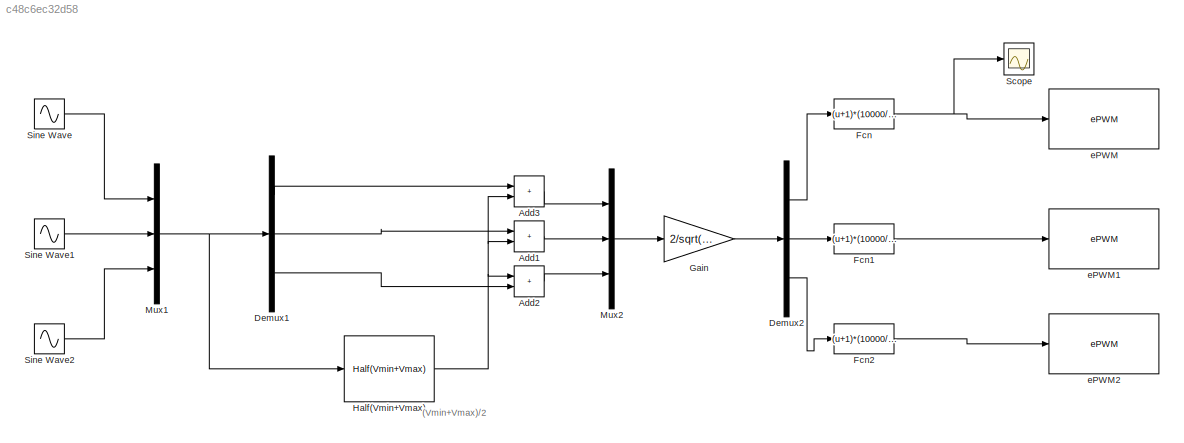
MODEL slx_c48c6ec32d58
KIND model
CONFIG AbsTol = auto
CONFIG EnableMultiTasking = on
CONFIG FixedStep = 1e-5
CONFIG MaxStep = auto
CONFIG MinStep = auto
CONFIG RelTol = 1e-3
CONFIG SampleTimeConstraint = Unconstrained
CONFIG SolverName = FixedStepAuto
CONFIG StartTime = 0.0
CONFIG StopTime = Inf
BLOCK [Sum] Add1
  AccumDataTypeStr = Inherit: Same as first input
  IconShape = rectangular
  OutDataTypeStr = Inherit: Same as first input
  RndMeth = Simplest
BLOCK [Sum] Add2
  AccumDataTypeStr = Inherit: Same as first input
  IconShape = rectangular
  OutDataTypeStr = Inherit: Same as first input
  RndMeth = Simplest
BLOCK [Sum] Add3
  AccumDataTypeStr = Inherit: Same as first input
  IconShape = rectangular
  OutDataTypeStr = Inherit: Same as first input
  RndMeth = Simplest
BLOCK [Demux] Demux1
  Outputs = 3
BLOCK [Demux] Demux2
  Outputs = 3
BLOCK [Fcn] Fcn
  Expr = (u+1)*(10000/2)
BLOCK [Fcn] Fcn1
  Expr = (u+1)*(10000/2)
BLOCK [Fcn] Fcn2
  Expr = (u+1)*(10000/2)
BLOCK [Gain] Gain
  Gain = 2/sqrt(3)
  OutDataTypeStr = Inherit: Same as input
  ParamDataTypeStr = Inherit: Same as input
  RndMeth = Simplest
BLOCK [Reference] Half(Vmin+Vmax)  REF=mcbcontrolslib/PWM Reference Generator/Modulation method/SVPWM/Half(Vmin+Vmax)
  SourceBlock = mcbcontrolslib/PWM Reference Generator/Modulation method/SVPWM/Half(Vmin+Vmax)
  SourceType = SubSystem
BLOCK [Mux] Mux1
  DisplayOption = bar
  Inputs = 3
BLOCK [Mux] Mux2
  DisplayOption = bar
  Inputs = 3
BLOCK [Scope] Scope
  Floating = off
  NumInputPorts = 1
  ScopeSpecificationString = Simulink.scopes.TimeScopeBlockCfg('CurrentConfiguration', extmgr.ConfigurationSet(extmgr.Configuration('Core','General UI',true),extmgr.Configuration('Core','Source UI',true),extmgr.Configuration('Sources','WiredSimulink',true),extmgr.Configuration('Visuals','Time Domain',true,'SerializedDisplays',{struct('MinYLimReal','443.52078','MaxYLimReal','9777.54789','YLabelReal','','MinYLimMag','443.52078'...<+1474ch>
BLOCK [Sin] Sine Wave
  Amplitude = 0.9
  Frequency = 100*pi
  SampleTime = 1/10000
BLOCK [Sin] Sine Wave1
  Amplitude = 0.9
  Frequency = 100*pi
  Phase = (-2*pi)/3
  SampleTime = 1/10000
BLOCK [Sin] Sine Wave2
  Amplitude = 0.9
  Frequency = 100*pi
  Phase = (2*pi)/3
  SampleTime = 1/10000
BLOCK [Reference] ePWM  REF=c2802xlib/ePWM
  LibrarySourceBlock = c2837xDlib/ePWM
  SourceBlock = c2802xlib/ePWM
  SourceType = ePWM Type 1-4
  UserDataPersistent = on
BLOCK [Reference] ePWM1  REF=c2802xlib/ePWM
  LibrarySourceBlock = c2837xDlib/ePWM
  SourceBlock = c2802xlib/ePWM
  SourceType = ePWM Type 1-4
  UserDataPersistent = on
BLOCK [Reference] ePWM2  REF=c2802xlib/ePWM
  LibrarySourceBlock = c2837xDlib/ePWM
  SourceBlock = c2802xlib/ePWM
  SourceType = ePWM Type 1-4
  UserDataPersistent = on
ANNOTATION (root): (Vmin+Vmax)/2
LINE Add1:1 -> Mux2:2
LINE Add2:1 -> Mux2:3
LINE Add3:1 -> Mux2:1
LINE Demux1:1 -> Add3:1
LINE Demux1:2 -> Add1:1
LINE Demux1:3 -> Add2:2
LINE Demux2:1 -> Fcn:1
LINE Demux2:2 -> Fcn1:1
LINE Demux2:3 -> Fcn2:1
LINE Fcn1:1 -> ePWM1:1
LINE Fcn2:1 -> ePWM2:1
NET Fcn:1 -> Scope:1, ePWM:1
LINE Gain:1 -> Demux2:1
NET Half(Vmin+Vmax):1 -> Add1:2, Add2:1, Add3:2
NET Mux1:1 -> Demux1:1, Half(Vmin+Vmax):1
LINE Mux2:1 -> Gain:1
LINE Sine Wave1:1 -> Mux1:2
LINE Sine Wave2:1 -> Mux1:3
LINE Sine Wave:1 -> Mux1:1
note: NET lines group one-source signal fan-out (src -> all destinations, sorted); 1:1 wires keep LINE
